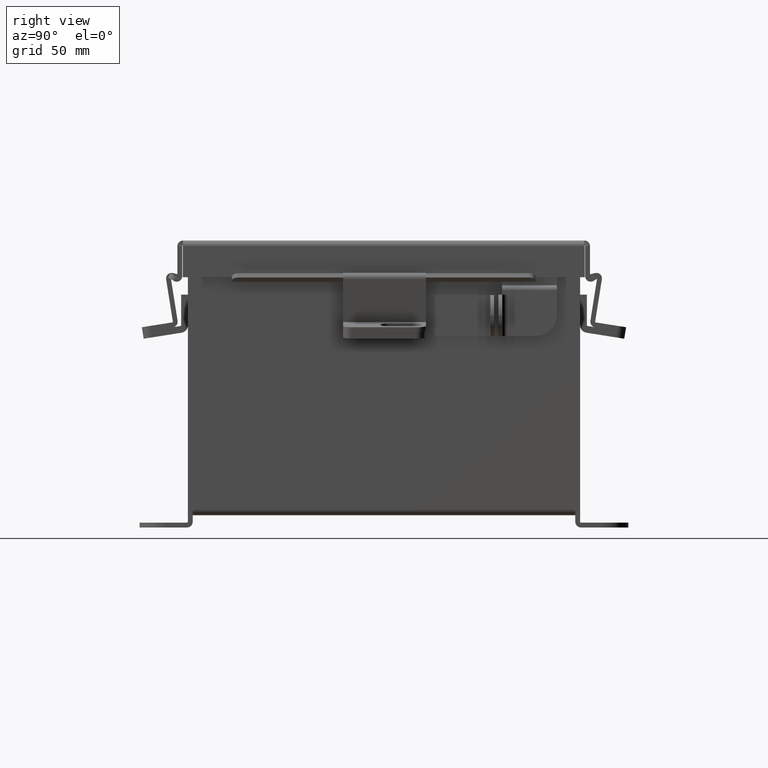
[diagram: clean part render]
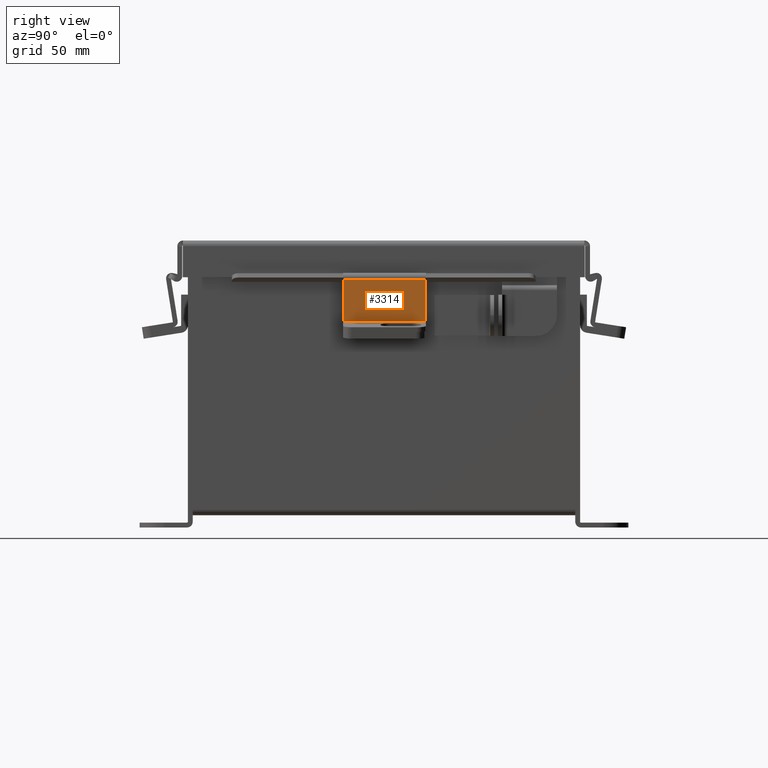
[diagram: same view with one face highlighted and labeled with its STEP entity id]
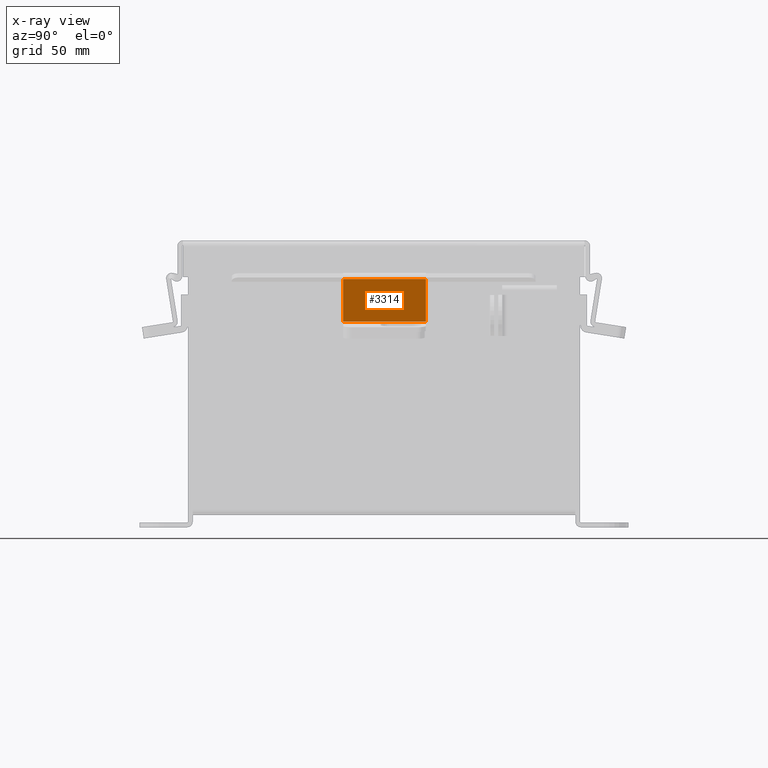
[diagram: x-ray of the same camera — body ghosted, the highlighted face saturated]
A machine part, right view. The second image highlights one B-rep face of the part: STEP entity #3314.
The next image is the same camera in x-ray: the body ghosted, the highlighted face saturated — about 0% of this face is hidden behind the body in this view.
In plain terms, the highlighted planar face has unit normal (-0.9877, 0, 0.1564).
Its self-contained STEP definition (entity closure, byte-faithful):
#228 = DIRECTION ( 'NONE',  ( 0.0000000000000000000, 1.000000000000000000, 0.0000000000000000000 ) ) ;
#248 = PLANE ( 'NONE',  #3504 ) ;
#415 = ORIENTED_EDGE ( 'NONE', *, *, #3273, .T. ) ;
#1140 = VECTOR ( 'NONE', #228, 39.37007874015748100 ) ;
#1300 = EDGE_LOOP ( 'NONE', ( #13555, #415, #10170, #10402 ) ) ;
#1320 = LINE ( 'NONE', #3905, #9731 ) ;
#1834 = CARTESIAN_POINT ( 'NONE',  ( 0.6324999999999998400, 0.3243453803252444000, -1.024442997624098700E-016 ) ) ;
#2327 = VERTEX_POINT ( 'NONE', #13340 ) ;
#3011 = CARTESIAN_POINT ( 'NONE',  ( 0.6325000000000000600, 0.3243453803252444000, -1.024442997624098700E-016 ) ) ;
#3153 = DIRECTION ( 'NONE',  ( -0.0000000000000000000, -1.000000000000000000, -0.0000000000000000000 ) ) ;
#3273 = EDGE_CURVE ( 'NONE', #2327, #9754, #1320, .T. ) ;
#3314 = ADVANCED_FACE ( 'NONE', ( #4212 ), #248, .F. ) ;
#3504 = AXIS2_PLACEMENT_3D ( 'NONE', #8013, #5896, #14090 ) ;
#3905 = CARTESIAN_POINT ( 'NONE',  ( -0.6325000000000000600, -0.4174999999999998700, 0.0000000000000000000 ) ) ;
#4047 = LINE ( 'NONE', #7838, #1140 ) ;
#4212 = FACE_OUTER_BOUND ( 'NONE', #1300, .T. ) ;
#5180 = LINE ( 'NONE', #13888, #13622 ) ;
#5896 = DIRECTION ( 'NONE',  ( 0.0000000000000000000, 0.0000000000000000000, -1.000000000000000000 ) ) ;
#7165 = VERTEX_POINT ( 'NONE', #8526 ) ;
#7749 = EDGE_CURVE ( 'NONE', #7165, #9754, #5180, .T. ) ;
#7838 = CARTESIAN_POINT ( 'NONE',  ( 0.6325000000000000600, -0.4174999999999998700, 0.0000000000000000000 ) ) ;
#8013 = CARTESIAN_POINT ( 'NONE',  ( 0.6325000000000000600, 0.4175000000000001500, 0.0000000000000000000 ) ) ;
#8526 = CARTESIAN_POINT ( 'NONE',  ( 0.6325000000000000600, -0.3344999999999998500, -3.734948428837859800E-017 ) ) ;
#8699 = EDGE_CURVE ( 'NONE', #13474, #2327, #9128, .T. ) ;
#9128 = LINE ( 'NONE', #3011, #11699 ) ;
#9488 = DIRECTION ( 'NONE',  ( -1.000000000000000000, 0.0000000000000000000, 0.0000000000000000000 ) ) ;
#9731 = VECTOR ( 'NONE', #3153, 39.37007874015748100 ) ;
#9754 = VERTEX_POINT ( 'NONE', #11535 ) ;
#10170 = ORIENTED_EDGE ( 'NONE', *, *, #7749, .F. ) ;
#10402 = ORIENTED_EDGE ( 'NONE', *, *, #13801, .T. ) ;
#10698 = DIRECTION ( 'NONE',  ( -1.000000000000000000, -0.0000000000000000000, -0.0000000000000000000 ) ) ;
#11535 = CARTESIAN_POINT ( 'NONE',  ( -0.6325000000000000600, -0.3344999999999998500, -3.734948428837859800E-017 ) ) ;
#11699 = VECTOR ( 'NONE', #10698, 39.37007874015748100 ) ;
#13340 = CARTESIAN_POINT ( 'NONE',  ( -0.6325000000000000600, 0.3243453803252444000, 0.0000000000000000000 ) ) ;
#13474 = VERTEX_POINT ( 'NONE', #1834 ) ;
#13555 = ORIENTED_EDGE ( 'NONE', *, *, #8699, .T. ) ;
#13622 = VECTOR ( 'NONE', #9488, 39.37007874015748100 ) ;
#13801 = EDGE_CURVE ( 'NONE', #7165, #13474, #4047, .T. ) ;
#13888 = CARTESIAN_POINT ( 'NONE',  ( 0.6325000000000000600, -0.3344999999999998500, -3.734948428837859800E-017 ) ) ;
#14090 = DIRECTION ( 'NONE',  ( -1.000000000000000000, 0.0000000000000000000, -0.0000000000000000000 ) ) ;